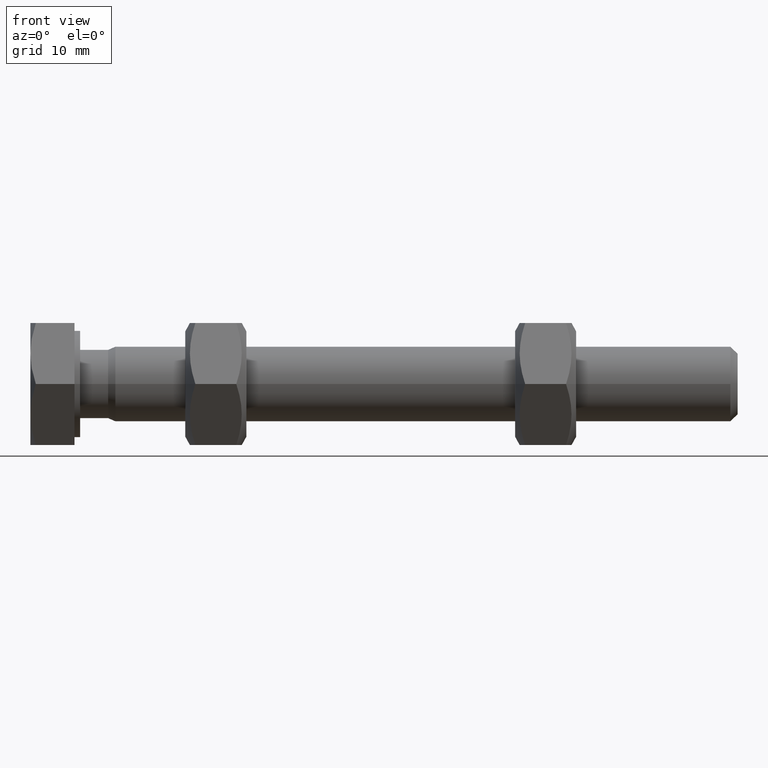
[diagram: clean part render]
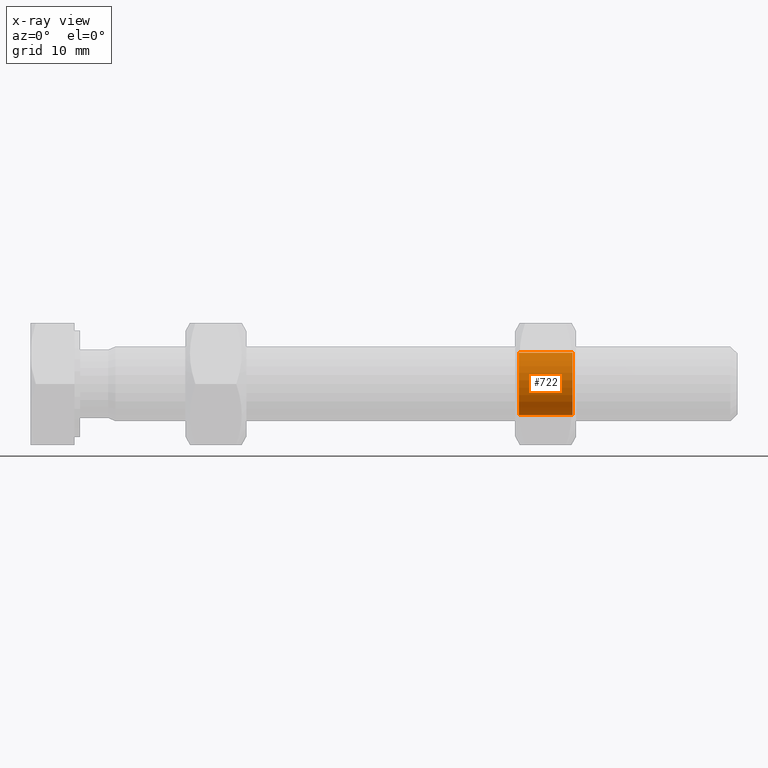
[diagram: x-ray — body ghosted, one internal face saturated and labeled with its STEP entity id]
A machine part, front view, then the same camera in x-ray: the body is ghosted and one INTERNAL B-rep face — a face not visible from any outside direction — is saturated and labeled: STEP entity #722.
In plain terms, the highlighted cylindrical surface (bore or boss wall) has radius 3.3235 mm, axis along (1, 0, 0).
Its self-contained STEP definition (entity closure, byte-faithful):
#91=CYLINDRICAL_SURFACE('',#817,3.3235);
#127=FACE_OUTER_BOUND('',#178,.T.);
#178=EDGE_LOOP('',(#615,#616,#617,#618,#619));
#221=LINE('',#1234,#260);
#260=VECTOR('',#983,3.3235);
#291=CIRCLE('',#815,3.3235);
#293=CIRCLE('',#818,3.3235);
#294=CIRCLE('',#819,3.3235);
#343=VERTEX_POINT('',#1227);
#345=VERTEX_POINT('',#1233);
#346=VERTEX_POINT('',#1235);
#435=EDGE_CURVE('',#343,#343,#291,.T.);
#438=EDGE_CURVE('',#343,#345,#221,.T.);
#439=EDGE_CURVE('',#346,#345,#293,.T.);
#440=EDGE_CURVE('',#345,#346,#294,.T.);
#615=ORIENTED_EDGE('',*,*,#435,.F.);
#616=ORIENTED_EDGE('',*,*,#438,.T.);
#617=ORIENTED_EDGE('',*,*,#439,.F.);
#618=ORIENTED_EDGE('',*,*,#440,.F.);
#619=ORIENTED_EDGE('',*,*,#438,.F.);
#722=ADVANCED_FACE('',(#127),#91,.F.);
#815=AXIS2_PLACEMENT_3D('',#1228,#976,#977);
#817=AXIS2_PLACEMENT_3D('',#1232,#981,#982);
#818=AXIS2_PLACEMENT_3D('',#1236,#984,#985);
#819=AXIS2_PLACEMENT_3D('',#1237,#986,#987);
#976=DIRECTION('center_axis',(1.,0.,0.));
#977=DIRECTION('ref_axis',(0.,0.,-1.));
#981=DIRECTION('center_axis',(1.,0.,0.));
#982=DIRECTION('ref_axis',(0.,0.,-1.));
#983=DIRECTION('',(1.,0.,0.));
#984=DIRECTION('center_axis',(-1.,0.,0.));
#985=DIRECTION('ref_axis',(0.,0.,1.));
#986=DIRECTION('center_axis',(-1.,0.,0.));
#987=DIRECTION('ref_axis',(0.,0.,1.));
#1227=CARTESIAN_POINT('',(46.6957628196226,4.03389417680776E-15,3.3235));
#1228=CARTESIAN_POINT('Origin',(46.6957628196226,4.44089209850063E-15,0.));
#1232=CARTESIAN_POINT('Origin',(31.9030645572243,4.44089209850063E-15,0.));
#1233=CARTESIAN_POINT('',(52.4145128196226,4.03388073480401E-15,3.3235));
#1234=CARTESIAN_POINT('',(31.9030645572243,4.03388073480401E-15,3.3235));
#1235=CARTESIAN_POINT('',(52.4145128196226,4.03389417680776E-15,-3.3235));
#1236=CARTESIAN_POINT('Origin',(52.4145128196226,4.44089209850063E-15,0.));
#1237=CARTESIAN_POINT('Origin',(52.4145128196226,4.44089209850063E-15,0.));